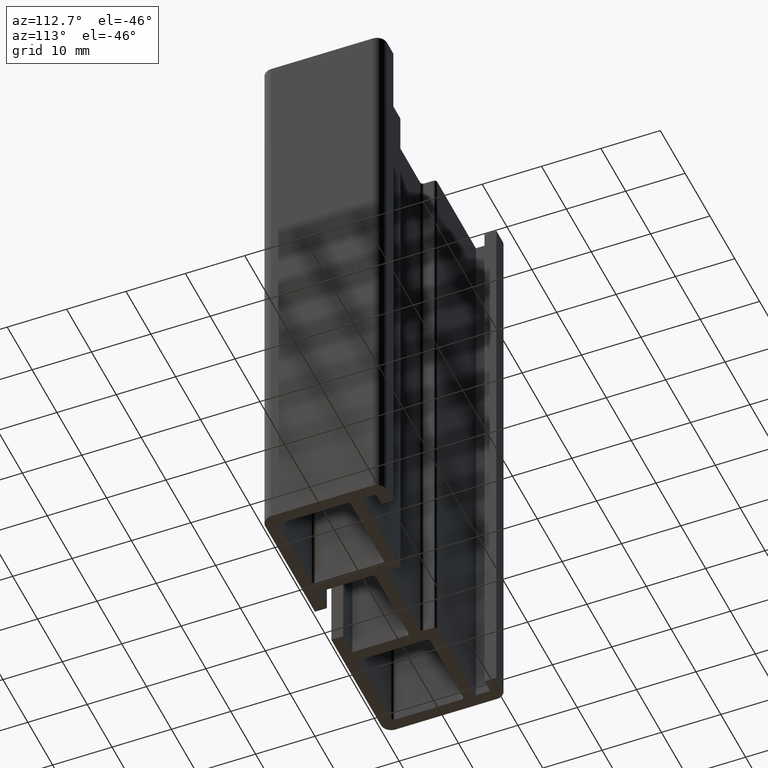
[diagram: clean part render]
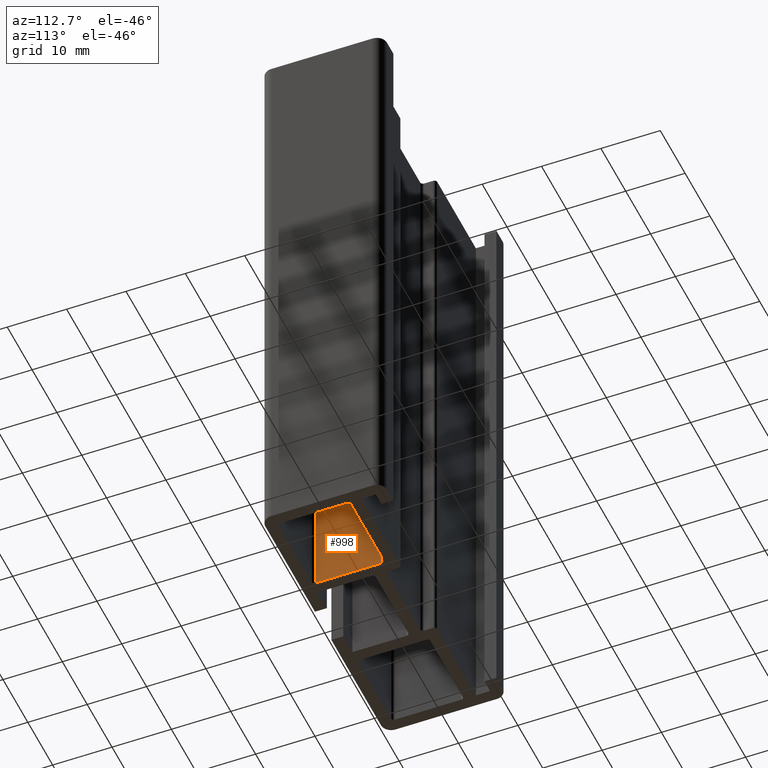
[diagram: same view with one face highlighted and labeled with its STEP entity id]
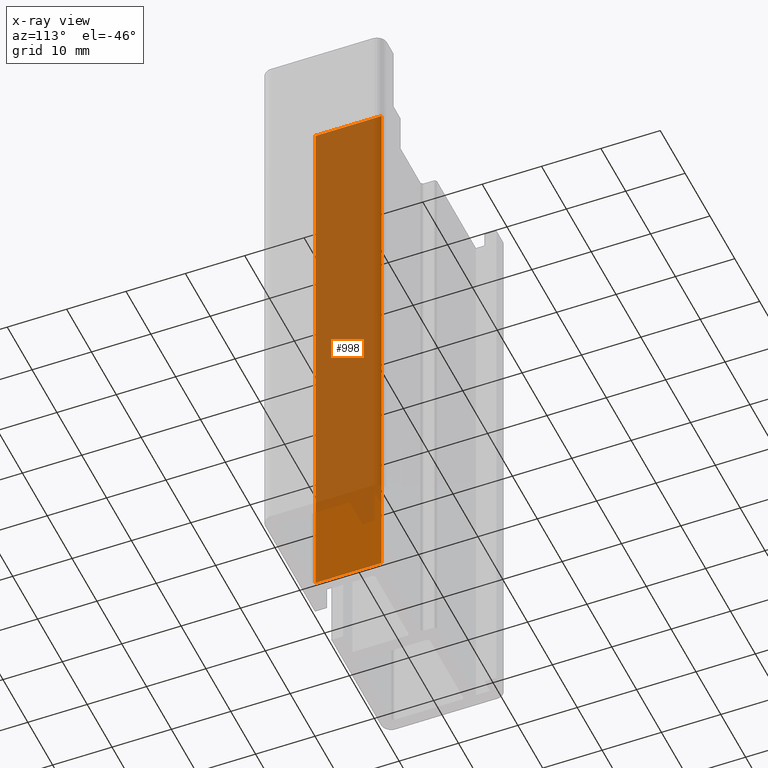
[diagram: x-ray of the same camera — body ghosted, the highlighted face saturated]
A machine part, auxiliary view. The second image highlights one B-rep face of the part: STEP entity #998.
The next image is the same camera in x-ray: the body ghosted, the highlighted face saturated — about 86% of this face is hidden behind the body in this view.
In plain terms, the highlighted planar face has unit normal (-1, 0, 0).
Its self-contained STEP definition (entity closure, byte-faithful):
#21=PLANE('',#1058);
#58=FACE_OUTER_BOUND('',#110,.T.);
#110=EDGE_LOOP('',(#695,#696,#697,#698));
#170=LINE('',#1459,#284);
#171=LINE('',#1463,#285);
#172=LINE('',#1465,#286);
#173=LINE('',#1466,#287);
#284=VECTOR('',#1166,100.);
#285=VECTOR('',#1171,11.1);
#286=VECTOR('',#1172,100.);
#287=VECTOR('',#1173,11.1);
#435=VERTEX_POINT('',#1456);
#436=VERTEX_POINT('',#1458);
#437=VERTEX_POINT('',#1462);
#438=VERTEX_POINT('',#1464);
#539=EDGE_CURVE('',#435,#436,#170,.T.);
#541=EDGE_CURVE('',#437,#435,#171,.T.);
#542=EDGE_CURVE('',#437,#438,#172,.T.);
#543=EDGE_CURVE('',#436,#438,#173,.T.);
#695=ORIENTED_EDGE('',*,*,#541,.F.);
#696=ORIENTED_EDGE('',*,*,#542,.T.);
#697=ORIENTED_EDGE('',*,*,#543,.F.);
#698=ORIENTED_EDGE('',*,*,#539,.F.);
#998=ADVANCED_FACE('',(#58),#21,.F.);
#1058=AXIS2_PLACEMENT_3D('',#1461,#1169,#1170);
#1166=DIRECTION('',(0.,0.,1.));
#1169=DIRECTION('center_axis',(-1.,0.,0.));
#1170=DIRECTION('ref_axis',(0.,-1.,0.));
#1171=DIRECTION('',(0.,-1.,0.));
#1172=DIRECTION('',(0.,0.,1.));
#1173=DIRECTION('',(0.,1.,0.));
#1456=CARTESIAN_POINT('',(9.,-7.74999999999999,0.));
#1458=CARTESIAN_POINT('',(9.,-7.74999999999999,100.));
#1459=CARTESIAN_POINT('',(9.,-7.74999999999999,0.));
#1461=CARTESIAN_POINT('Origin',(9.,3.35000000000001,0.));
#1462=CARTESIAN_POINT('',(9.,3.35000000000001,0.));
#1463=CARTESIAN_POINT('',(9.,1.29644869147217,0.));
#1464=CARTESIAN_POINT('',(9.,3.35000000000001,100.));
#1465=CARTESIAN_POINT('',(9.,3.35000000000001,0.));
#1466=CARTESIAN_POINT('',(9.,1.29644869147217,100.));